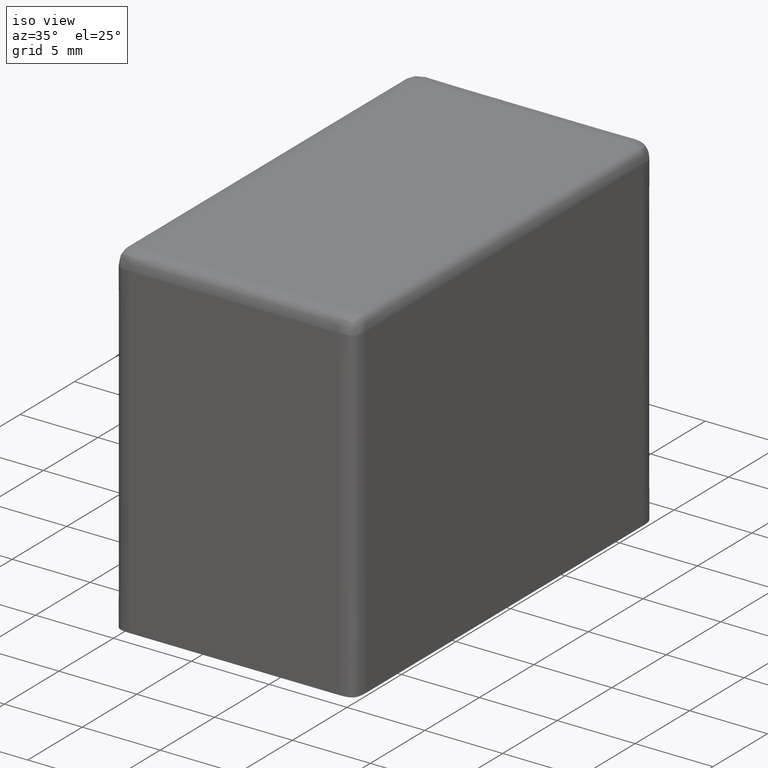
[diagram: clean part render]
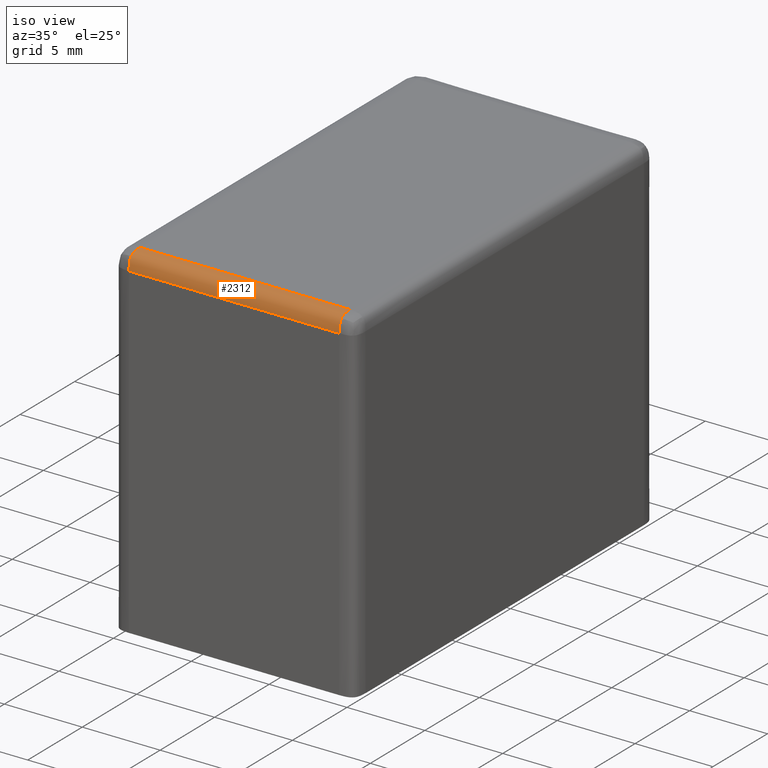
[diagram: same view with one face highlighted and labeled with its STEP entity id]
A machine part, iso view. The second image highlights one B-rep face of the part: STEP entity #2312.
In plain terms, the highlighted face is a freeform B-spline surface patch.
Its self-contained STEP definition (entity closure, byte-faithful):
#18 = CARTESIAN_POINT ( 'NONE',  ( 14.50000000000000900, 0.0000000000000000000, -1.000000000000000000 ) ) ;
#93 =( BOUNDED_CURVE ( )  B_SPLINE_CURVE ( 2, ( #2027, #3021, #520 ),
 .UNSPECIFIED., .F., .F. ) 
 B_SPLINE_CURVE_WITH_KNOTS ( ( 3, 3 ),
 ( 0.0000000000000000000, 1.000000000000000000 ),
 .UNSPECIFIED. ) 
 CURVE ( )  GEOMETRIC_REPRESENTATION_ITEM ( )  RATIONAL_B_SPLINE_CURVE ( ( 1.000000000000000000, 1.207106781186545700, 1.207106781186547500 ) ) 
 REPRESENTATION_ITEM ( '' )  );
#94 = CARTESIAN_POINT ( 'NONE',  ( 4.908333333333337700, 1.000000000000000000, 0.0000000000000000000 ) ) ;
#97 = EDGE_LOOP ( 'NONE', ( #1197, #2130, #441, #1399, #868, #3212 ) ) ;
#101 = CARTESIAN_POINT ( 'NONE',  ( 4.908333333333337700, 0.0000000000000000000, 0.0000000000000000000 ) ) ;
#274 =( BOUNDED_SURFACE ( )  B_SPLINE_SURFACE ( 2, 3, ( 
 ( #821, #1103, #2599, #1358 ),
 ( #1606, #3115, #101, #2117 ),
 ( #1868, #352, #94, #2353 ) ),
 .UNSPECIFIED., .F., .F., .T. ) 
 B_SPLINE_SURFACE_WITH_KNOTS ( ( 3, 3 ),
 ( 4, 4 ),
 ( 0.0000000000000000000, 1.000000000000000000 ),
 ( -0.0007750000000000000800, 0.01627500000000000100 ),
 .UNSPECIFIED. ) 
 GEOMETRIC_REPRESENTATION_ITEM ( )  RATIONAL_B_SPLINE_SURFACE ( (
 ( 1.000000000000000000, 1.000000000000000000, 1.000000000000000000, 1.000000000000000000),
 ( 1.414213562373095100, 1.414213562373095100, 1.414213562373095100, 1.414213562373095100),
 ( 1.000000000000000000, 1.000000000000000000, 1.000000000000000000, 1.000000000000000000) ) ) 
 REPRESENTATION_ITEM ( '' )  SURFACE ( )  );
#315 = B_SPLINE_CURVE_WITH_KNOTS ( 'NONE', 3,
 ( #1947, #1966, #1717, #1205 ),
 .UNSPECIFIED., .F., .F.,
 ( 4, 4 ),
 ( 0.0000000000000000000, 1.000000000000000000 ),
 .UNSPECIFIED. ) ;
#352 = CARTESIAN_POINT ( 'NONE',  ( 10.59166666666666000, 1.000000000000000000, 0.0000000000000000000 ) ) ;
#359 = CARTESIAN_POINT ( 'NONE',  ( 1.000000000000001800, 0.06345589294292358600, -0.4450336772522585100 ) ) ;
#372 = CARTESIAN_POINT ( 'NONE',  ( 0.9999999999999961100, 0.2071067811865475400, -0.2071067811865475400 ) ) ;
#385 = CARTESIAN_POINT ( 'NONE',  ( 0.9999999999999961100, 0.2071067811865475400, -0.2071067811865475400 ) ) ;
#441 = ORIENTED_EDGE ( 'NONE', *, *, #2409, .F. ) ;
#520 = CARTESIAN_POINT ( 'NONE',  ( 14.49999999999999800, 0.2071067811865474600, -0.2071067811865474600 ) ) ;
#731 = CARTESIAN_POINT ( 'NONE',  ( 14.49999999999999800, 0.2071067811865474600, -0.2071067811865474600 ) ) ;
#763 = VERTEX_POINT ( 'NONE', #18 ) ;
#821 = CARTESIAN_POINT ( 'NONE',  ( 16.27500000000000200, 0.0000000000000000000, -1.000000000000000000 ) ) ;
#865 = CARTESIAN_POINT ( 'NONE',  ( 1.000000000000000000, 0.0000000000000000000, -0.8600064052809292000 ) ) ;
#868 = ORIENTED_EDGE ( 'NONE', *, *, #1058, .F. ) ;
#967 = CARTESIAN_POINT ( 'NONE',  ( 14.49999999999999800, 0.9999999999999945600, 0.0000000000000000000 ) ) ;
#1058 = EDGE_CURVE ( 'NONE', #763, #1342, #315, .T. ) ;
#1095 = CARTESIAN_POINT ( 'NONE',  ( 0.9999999999999974500, 0.0000000000000000000, -1.000000000000000000 ) ) ;
#1103 = CARTESIAN_POINT ( 'NONE',  ( 10.59166666666666000, 0.0000000000000000000, -1.000000000000000000 ) ) ;
#1119 = VERTEX_POINT ( 'NONE', #1730 ) ;
#1121 = CARTESIAN_POINT ( 'NONE',  ( 0.9999999999999453800, 0.7193806565983090800, -0.005963910589551803400 ) ) ;
#1148 = VERTEX_POINT ( 'NONE', #731 ) ;
#1197 = ORIENTED_EDGE ( 'NONE', *, *, #2092, .T. ) ;
#1205 = CARTESIAN_POINT ( 'NONE',  ( 0.9999999999999974500, 0.0000000000000000000, -1.000000000000000000 ) ) ;
#1322 = CARTESIAN_POINT ( 'NONE',  ( 1.000000000000000900, 0.9999999999999952300, 0.0000000000000000000 ) ) ;
#1342 = VERTEX_POINT ( 'NONE', #1869 ) ;
#1343 = CARTESIAN_POINT ( 'NONE',  ( 0.9999999999999974500, 0.1217923441640681200, -0.3177102920610812000 ) ) ;
#1358 = CARTESIAN_POINT ( 'NONE',  ( -0.7750000000000048000, 0.0000000000000000000, -1.000000000000000000 ) ) ;
#1362 = CARTESIAN_POINT ( 'NONE',  ( 0.9999999999999744600, 0.8600049047195383900, 0.0000000000000000000 ) ) ;
#1399 = ORIENTED_EDGE ( 'NONE', *, *, #2403, .F. ) ;
#1486 = B_SPLINE_CURVE_WITH_KNOTS ( 'NONE', 3,
 ( #372, #2605, #3148, #2123, #2619, #2137, #2111, #1121, #1362, #3111 ),
 .UNSPECIFIED., .F., .F.,
 ( 4, 2, 2, 2, 4 ),
 ( 0.0000000000000000000, 0.1250000000000000000, 0.2500000000000000000, 0.5000000000000000000, 1.000000000000000000 ),
 .UNSPECIFIED. ) ;
#1606 = CARTESIAN_POINT ( 'NONE',  ( 16.27500000000000200, 0.0000000000000000000, 0.0000000000000000000 ) ) ;
#1623 = CARTESIAN_POINT ( 'NONE',  ( 14.49999999999999800, 0.9999999999999945600, 0.0000000000000000000 ) ) ;
#1625 = CARTESIAN_POINT ( 'NONE',  ( 1.000000000000012700, 0.1823584780833757100, -0.2318550842897193500 ) ) ;
#1717 = CARTESIAN_POINT ( 'NONE',  ( 5.500000000000001800, 0.0000000000000000000, -1.000000000000000000 ) ) ;
#1730 = CARTESIAN_POINT ( 'NONE',  ( 14.49999999999999800, 0.9999999999999945600, 0.0000000000000000000 ) ) ;
#1851 = CARTESIAN_POINT ( 'NONE',  ( 9.999999999999998200, 1.000000000000000000, 0.0000000000000000000 ) ) ;
#1868 = CARTESIAN_POINT ( 'NONE',  ( 16.27500000000000200, 1.000000000000000000, 0.0000000000000000000 ) ) ;
#1869 = CARTESIAN_POINT ( 'NONE',  ( 0.9999999999999974500, 0.0000000000000000000, -1.000000000000000000 ) ) ;
#1947 = CARTESIAN_POINT ( 'NONE',  ( 14.50000000000000900, 0.0000000000000000000, -1.000000000000000000 ) ) ;
#1966 = CARTESIAN_POINT ( 'NONE',  ( 10.00000000000000500, 0.0000000000000000000, -1.000000000000000000 ) ) ;
#2027 = CARTESIAN_POINT ( 'NONE',  ( 14.50000000000000900, 0.0000000000000000000, -1.000000000000000000 ) ) ;
#2068 = B_SPLINE_CURVE_WITH_KNOTS ( 'NONE', 3,
 ( #1095, #865, #2842, #3134, #359, #2347, #1343, #2359, #1625, #3101 ),
 .UNSPECIFIED., .F., .F.,
 ( 4, 2, 2, 2, 4 ),
 ( 0.0000000000000000000, 0.5000000000000000000, 0.7500000000000000000, 0.8750000000000000000, 1.000000000000000000 ),
 .UNSPECIFIED. ) ;
#2092 = EDGE_CURVE ( 'NONE', #1148, #1119, #2652, .T. ) ;
#2111 = CARTESIAN_POINT ( 'NONE',  ( 1.000000000000022200, 0.5130587434305996500, -0.04506668999666995500 ) ) ;
#2117 = CARTESIAN_POINT ( 'NONE',  ( -0.7750000000000049100, 0.0000000000000000000, 0.0000000000000000000 ) ) ;
#2123 = CARTESIAN_POINT ( 'NONE',  ( 0.9999999999999976700, 0.3177100677222491900, -0.1217924776391334500 ) ) ;
#2130 = ORIENTED_EDGE ( 'NONE', *, *, #2980, .F. ) ;
#2137 = CARTESIAN_POINT ( 'NONE',  ( 1.000000000000002200, 0.4450348550873395300, -0.06345543197960794300 ) ) ;
#2312 = ADVANCED_FACE ( 'NONE', ( #2860 ), #274, .T. ) ;
#2347 = CARTESIAN_POINT ( 'NONE',  ( 1.000000000000001300, 0.1053823940256887900, -0.3487701351804111100 ) ) ;
#2353 = CARTESIAN_POINT ( 'NONE',  ( -0.7750000000000048000, 1.000000000000000000, 0.0000000000000000000 ) ) ;
#2359 = CARTESIAN_POINT ( 'NONE',  ( 0.9999999999999970000, 0.1602684935114902500, -0.2592344784602311200 ) ) ;
#2403 = EDGE_CURVE ( 'NONE', #1342, #3244, #2068, .T. ) ;
#2409 = EDGE_CURVE ( 'NONE', #3244, #3084, #1486, .T. ) ;
#2522 = CARTESIAN_POINT ( 'NONE',  ( 1.000000000000000900, 0.9999999999999952300, 0.0000000000000000000 ) ) ;
#2572 = CARTESIAN_POINT ( 'NONE',  ( 5.499999999999997300, 1.000000000000000000, 0.0000000000000000000 ) ) ;
#2599 = CARTESIAN_POINT ( 'NONE',  ( 4.908333333333337700, 0.0000000000000000000, -1.000000000000000000 ) ) ;
#2605 = CARTESIAN_POINT ( 'NONE',  ( 0.9999999999999796800, 0.2318550842897194000, -0.1823584780833757100 ) ) ;
#2619 = CARTESIAN_POINT ( 'NONE',  ( 1.000000000000001300, 0.3487702021774594100, -0.1053823388314033500 ) ) ;
#2652 =( BOUNDED_CURVE ( )  B_SPLINE_CURVE ( 2, ( #2999, #3255, #967 ),
 .UNSPECIFIED., .F., .T. ) 
 B_SPLINE_CURVE_WITH_KNOTS ( ( 3, 3 ),
 ( 0.0000000000000000000, 1.000000000000000000 ),
 .UNSPECIFIED. ) 
 CURVE ( )  GEOMETRIC_REPRESENTATION_ITEM ( )  RATIONAL_B_SPLINE_CURVE ( ( 1.207106781186547700, 1.207106781186549200, 1.000000000000000000 ) ) 
 REPRESENTATION_ITEM ( '' )  );
#2783 = B_SPLINE_CURVE_WITH_KNOTS ( 'NONE', 3,
 ( #1322, #2572, #1851, #1623 ),
 .UNSPECIFIED., .F., .F.,
 ( 4, 4 ),
 ( 0.0000000000000000000, 1.000000000000000000 ),
 .UNSPECIFIED. ) ;
#2842 = CARTESIAN_POINT ( 'NONE',  ( 0.9999999999999699100, 0.005963780235582777400, -0.7193814339490191000 ) ) ;
#2846 = EDGE_CURVE ( 'NONE', #763, #1148, #93, .T. ) ;
#2860 = FACE_OUTER_BOUND ( 'NONE', #97, .T. ) ;
#2980 = EDGE_CURVE ( 'NONE', #3084, #1119, #2783, .T. ) ;
#2999 = CARTESIAN_POINT ( 'NONE',  ( 14.49999999999999800, 0.2071067811865474600, -0.2071067811865474600 ) ) ;
#3021 = CARTESIAN_POINT ( 'NONE',  ( 14.50000000000000200, 0.0000000000000000000, -0.4142135623730989800 ) ) ;
#3084 = VERTEX_POINT ( 'NONE', #2522 ) ;
#3101 = CARTESIAN_POINT ( 'NONE',  ( 0.9999999999999961100, 0.2071067811865475400, -0.2071067811865475400 ) ) ;
#3111 = CARTESIAN_POINT ( 'NONE',  ( 1.000000000000000900, 0.9999999999999952300, 0.0000000000000000000 ) ) ;
#3115 = CARTESIAN_POINT ( 'NONE',  ( 10.59166666666666000, 0.0000000000000000000, 0.0000000000000000000 ) ) ;
#3134 = CARTESIAN_POINT ( 'NONE',  ( 1.000000000000017800, 0.04506671137276512000, -0.5130585858663459000 ) ) ;
#3148 = CARTESIAN_POINT ( 'NONE',  ( 0.9999999999999974500, 0.2592343929106584700, -0.1602685639381096200 ) ) ;
#3212 = ORIENTED_EDGE ( 'NONE', *, *, #2846, .T. ) ;
#3244 = VERTEX_POINT ( 'NONE', #385 ) ;
#3255 = CARTESIAN_POINT ( 'NONE',  ( 14.50000000000000200, 0.4142135623730912000, 0.0000000000000000000 ) ) ;